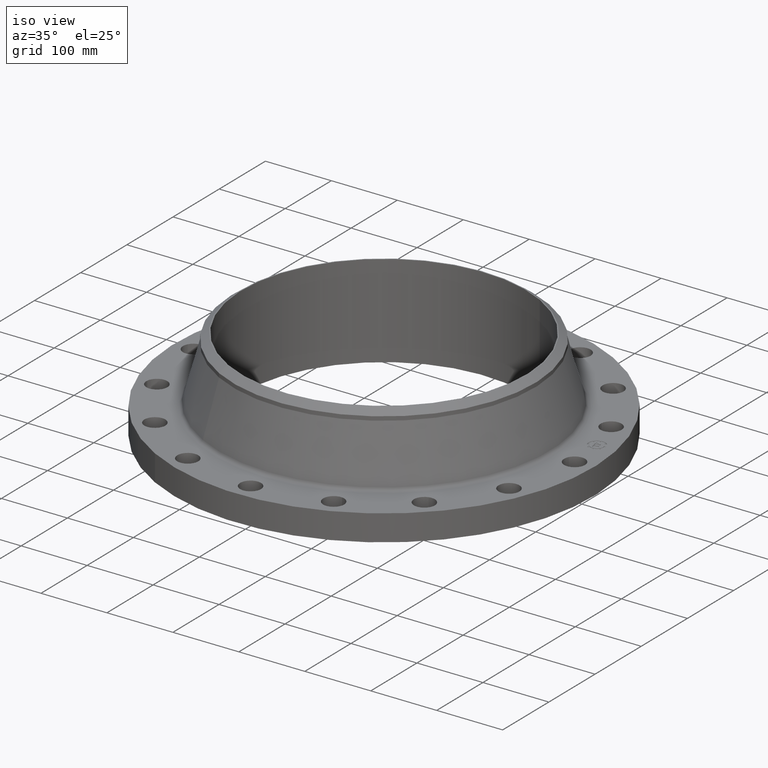
[diagram: clean part render]
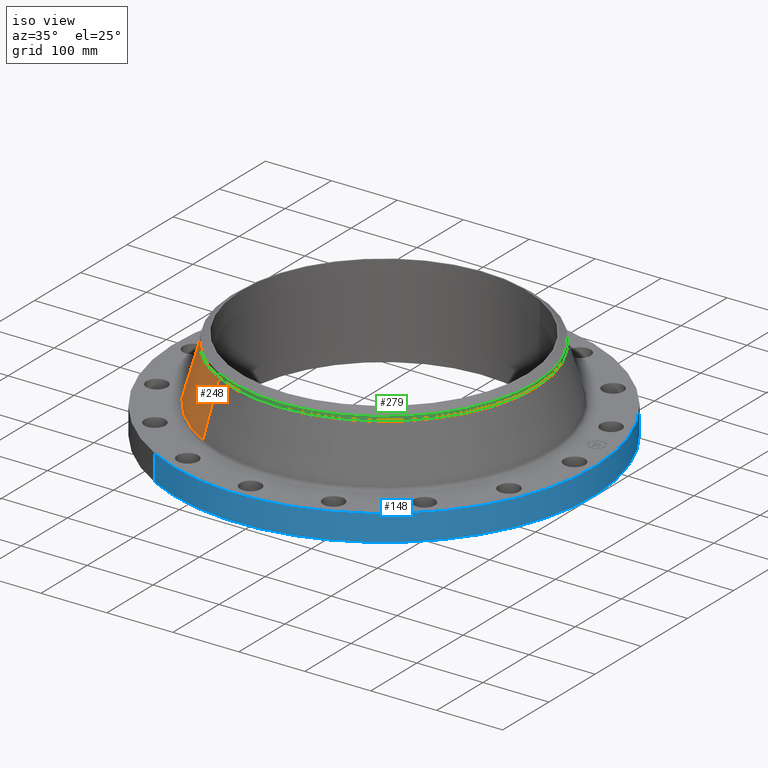
[diagram: same view with three faces highlighted in distinct colors, each labeled with its STEP entity id]
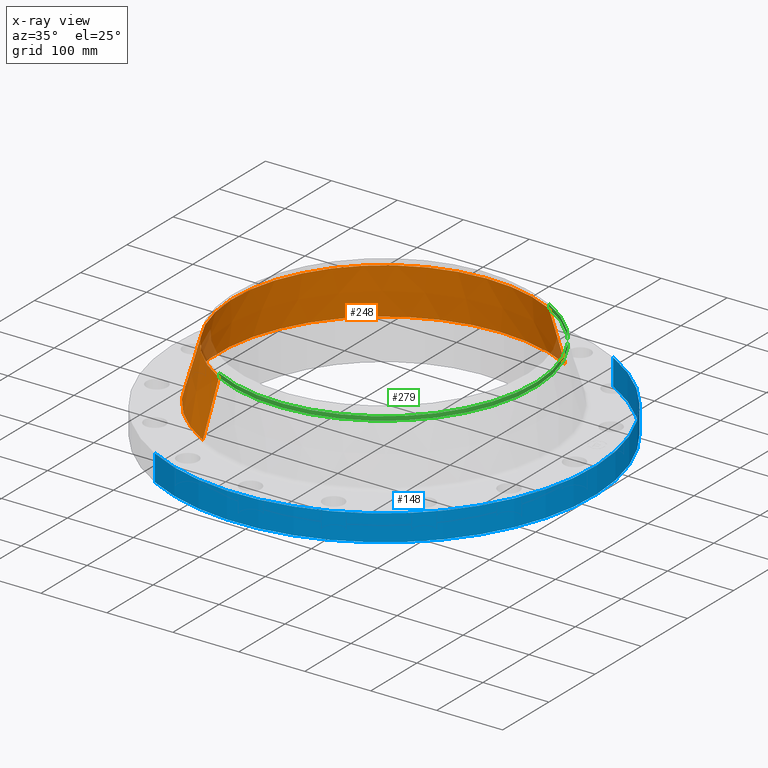
[diagram: x-ray of the same camera — body ghosted, the three highlighted faces saturated]
A machine part, iso view with three faces highlighted in distinct colors.
The next image is the same camera in x-ray (body ghosted, the three faces saturated) — at least one of them is partly hidden behind the body in this view.
Their STEP definitions:

[orange] entity #248 — the highlighted conical surface has half-angle 15.594 deg.
#196=AXIS2_PLACEMENT_3D('Circle Axis2P3D',#194,#195,$) ;
#209=AXIS2_PLACEMENT_3D('Cone Axis2P3D',#206,#207,#208) ;
#239=AXIS2_PLACEMENT_3D('Circle Axis2P3D',#237,#238,$) ;
#167=CARTESIAN_POINT('Vertex',(4.74103118609,8.67839937439,1.74279545718)) ;
#174=CARTESIAN_POINT('Vertex',(-4.74103118609,-8.67839937439,1.74279545718)) ;
#194=CARTESIAN_POINT('Axis2P3D Location',(0.,0.,1.74279545718)) ;
#206=CARTESIAN_POINT('Axis2P3D Location',(0.,0.,4.92807397034)) ;
#211=CARTESIAN_POINT('Line Origine',(4.52793051677,8.28832121572,3.33543471376)) ;
#215=CARTESIAN_POINT('Vertex',(4.31482984746,7.89824305704,4.92807397034)) ;
#222=CARTESIAN_POINT('Vertex',(-4.31482984746,-7.89824305704,4.92807397034)) ;
#225=CARTESIAN_POINT('Line Origine',(-4.52793051677,-8.28832121572,3.33543471376)) ;
#237=CARTESIAN_POINT('Axis2P3D Location',(0.,0.,4.92807397034)) ;
#195=DIRECTION('Axis2P3D Direction',(0.,0.,-0.0393700787402)) ;
#207=DIRECTION('Axis2P3D Direction',(0.,0.,-0.0393700787402)) ;
#208=DIRECTION('Axis2P3D XDirection',(-0.0188750212049,-0.0345504945626,0.)) ;
#212=DIRECTION('Vector Direction',(0.00507394868349,0.00928780076573,-0.037920903229)) ;
#226=DIRECTION('Vector Direction',(-0.00507394868349,-0.00928780076573,-0.037920903229)) ;
#238=DIRECTION('Axis2P3D Direction',(0.,0.,-0.0393700787402)) ;
#213=VECTOR('Line Direction',#212,0.0393700787402) ;
#227=VECTOR('Line Direction',#226,0.0393700787402) ;
#243=ORIENTED_EDGE('',*,*,#198,.F.) ;
#244=ORIENTED_EDGE('',*,*,#229,.T.) ;
#245=ORIENTED_EDGE('',*,*,#241,.T.) ;
#246=ORIENTED_EDGE('',*,*,#217,.F.) ;
#248=ADVANCED_FACE('PartBody',(#247),#210,.T.) ;
#197=CIRCLE('generated circle',#196,9.88898338602) ;
#240=CIRCLE('generated circle',#239,9.00000000004) ;
#210=CONICAL_SURFACE('Cone',#209,9.00000000004,0.272165827834) ;
#198=EDGE_CURVE('',#175,#168,#197,.T.) ;
#217=EDGE_CURVE('',#168,#216,#214,.F.) ;
#229=EDGE_CURVE('',#175,#223,#228,.F.) ;
#241=EDGE_CURVE('',#223,#216,#240,.T.) ;
#242=EDGE_LOOP('',(#243,#244,#245,#246)) ;
#247=FACE_OUTER_BOUND('',#242,.T.) ;
#214=LINE('Line',#211,#213) ;
#228=LINE('Line',#225,#227) ;
#168=VERTEX_POINT('',#167) ;
#175=VERTEX_POINT('',#174) ;
#216=VERTEX_POINT('',#215) ;
#223=VERTEX_POINT('',#222) ;

[blue] entity #148 — the highlighted cylindrical surface (partial cylindrical patch) has radius 317.5 mm, axis along (0, 0, -1).
#95=AXIS2_PLACEMENT_3D('Cylinder Axis2P3D',#92,#93,#94) ;
#134=AXIS2_PLACEMENT_3D('Circle Axis2P3D',#132,#133,$) ;
#139=AXIS2_PLACEMENT_3D('Circle Axis2P3D',#137,#138,$) ;
#92=CARTESIAN_POINT('Axis2P3D Location',(0.,0.,2.76850000001)) ;
#101=CARTESIAN_POINT('Vertex',(-5.99281923258,-10.9697820237,1.1189649382E-015)) ;
#103=CARTESIAN_POINT('Vertex',(5.99281923258,10.9697820237,1.1189649382E-015)) ;
#106=CARTESIAN_POINT('Line Origine',(-5.99281923258,-10.9697820237,0.780000000003)) ;
#110=CARTESIAN_POINT('Vertex',(-5.99281923258,-10.9697820237,1.56000000001)) ;
#117=CARTESIAN_POINT('Vertex',(5.99281923258,10.9697820237,1.56000000001)) ;
#120=CARTESIAN_POINT('Line Origine',(5.99281923258,10.9697820237,0.780000000003)) ;
#132=CARTESIAN_POINT('Axis2P3D Location',(0.,0.,1.1189649382E-015)) ;
#137=CARTESIAN_POINT('Axis2P3D Location',(0.,0.,1.56000000001)) ;
#93=DIRECTION('Axis2P3D Direction',(0.,0.,-0.0393700787402)) ;
#94=DIRECTION('Axis2P3D XDirection',(0.0188750212049,0.0345504945626,0.)) ;
#107=DIRECTION('Vector Direction',(0.,0.,-0.0393700787402)) ;
#121=DIRECTION('Vector Direction',(0.,0.,-0.0393700787402)) ;
#133=DIRECTION('Axis2P3D Direction',(0.,0.,-0.0393700787402)) ;
#138=DIRECTION('Axis2P3D Direction',(0.,0.,-0.0393700787402)) ;
#108=VECTOR('Line Direction',#107,0.0393700787402) ;
#122=VECTOR('Line Direction',#121,0.0393700787402) ;
#143=ORIENTED_EDGE('',*,*,#136,.F.) ;
#144=ORIENTED_EDGE('',*,*,#124,.T.) ;
#145=ORIENTED_EDGE('',*,*,#141,.T.) ;
#146=ORIENTED_EDGE('',*,*,#112,.F.) ;
#148=ADVANCED_FACE('PartBody',(#147),#96,.T.) ;
#135=CIRCLE('generated circle',#134,12.5000000001) ;
#140=CIRCLE('generated circle',#139,12.5000000001) ;
#96=CYLINDRICAL_SURFACE('generated cylinder',#95,12.5000000001) ;
#112=EDGE_CURVE('',#102,#111,#109,.F.) ;
#124=EDGE_CURVE('',#104,#118,#123,.F.) ;
#136=EDGE_CURVE('',#104,#102,#135,.T.) ;
#141=EDGE_CURVE('',#118,#111,#140,.T.) ;
#142=EDGE_LOOP('',(#143,#144,#145,#146)) ;
#147=FACE_OUTER_BOUND('',#142,.T.) ;
#109=LINE('Line',#106,#108) ;
#123=LINE('Line',#120,#122) ;
#102=VERTEX_POINT('',#101) ;
#104=VERTEX_POINT('',#103) ;
#111=VERTEX_POINT('',#110) ;
#118=VERTEX_POINT('',#117) ;

[green] entity #279 — the highlighted cylindrical surface (partial cylindrical patch) has radius 228.6 mm, axis along (0, 0, -1).
#220=AXIS2_PLACEMENT_3D('Circle Axis2P3D',#218,#219,$) ;
#252=AXIS2_PLACEMENT_3D('Cylinder Axis2P3D',#249,#250,#251) ;
#270=AXIS2_PLACEMENT_3D('Circle Axis2P3D',#268,#269,$) ;
#215=CARTESIAN_POINT('Vertex',(4.31482984746,7.89824305704,4.92807397034)) ;
#218=CARTESIAN_POINT('Axis2P3D Location',(0.,0.,4.92807397034)) ;
#222=CARTESIAN_POINT('Vertex',(-4.31482984746,-7.89824305704,4.92807397034)) ;
#249=CARTESIAN_POINT('Axis2P3D Location',(0.,0.,2.76850000001)) ;
#254=CARTESIAN_POINT('Line Origine',(-4.31482984746,-7.89824305704,5.04618420656)) ;
#258=CARTESIAN_POINT('Vertex',(-4.31482984746,-7.89824305704,5.16429444278)) ;
#261=CARTESIAN_POINT('Line Origine',(4.31482984746,7.89824305704,5.04618420656)) ;
#265=CARTESIAN_POINT('Vertex',(4.31482984746,7.89824305704,5.16429444278)) ;
#268=CARTESIAN_POINT('Axis2P3D Location',(0.,0.,5.16429444278)) ;
#219=DIRECTION('Axis2P3D Direction',(0.,0.,-0.0393700787402)) ;
#250=DIRECTION('Axis2P3D Direction',(0.,0.,-0.0393700787402)) ;
#251=DIRECTION('Axis2P3D XDirection',(-0.0188750212049,-0.0345504945626,0.)) ;
#255=DIRECTION('Vector Direction',(0.,0.,-0.0393700787402)) ;
#262=DIRECTION('Vector Direction',(0.,0.,-0.0393700787402)) ;
#269=DIRECTION('Axis2P3D Direction',(0.,0.,-0.0393700787402)) ;
#256=VECTOR('Line Direction',#255,0.0393700787402) ;
#263=VECTOR('Line Direction',#262,0.0393700787402) ;
#274=ORIENTED_EDGE('',*,*,#260,.F.) ;
#275=ORIENTED_EDGE('',*,*,#224,.F.) ;
#276=ORIENTED_EDGE('',*,*,#267,.T.) ;
#277=ORIENTED_EDGE('',*,*,#272,.T.) ;
#279=ADVANCED_FACE('PartBody',(#278),#253,.T.) ;
#221=CIRCLE('generated circle',#220,9.00000000004) ;
#271=CIRCLE('generated circle',#270,9.00000000004) ;
#253=CYLINDRICAL_SURFACE('generated cylinder',#252,9.00000000004) ;
#224=EDGE_CURVE('',#216,#223,#221,.T.) ;
#260=EDGE_CURVE('',#223,#259,#257,.F.) ;
#267=EDGE_CURVE('',#216,#266,#264,.F.) ;
#272=EDGE_CURVE('',#266,#259,#271,.T.) ;
#273=EDGE_LOOP('',(#274,#275,#276,#277)) ;
#278=FACE_OUTER_BOUND('',#273,.T.) ;
#257=LINE('Line',#254,#256) ;
#264=LINE('Line',#261,#263) ;
#216=VERTEX_POINT('',#215) ;
#223=VERTEX_POINT('',#222) ;
#259=VERTEX_POINT('',#258) ;
#266=VERTEX_POINT('',#265) ;